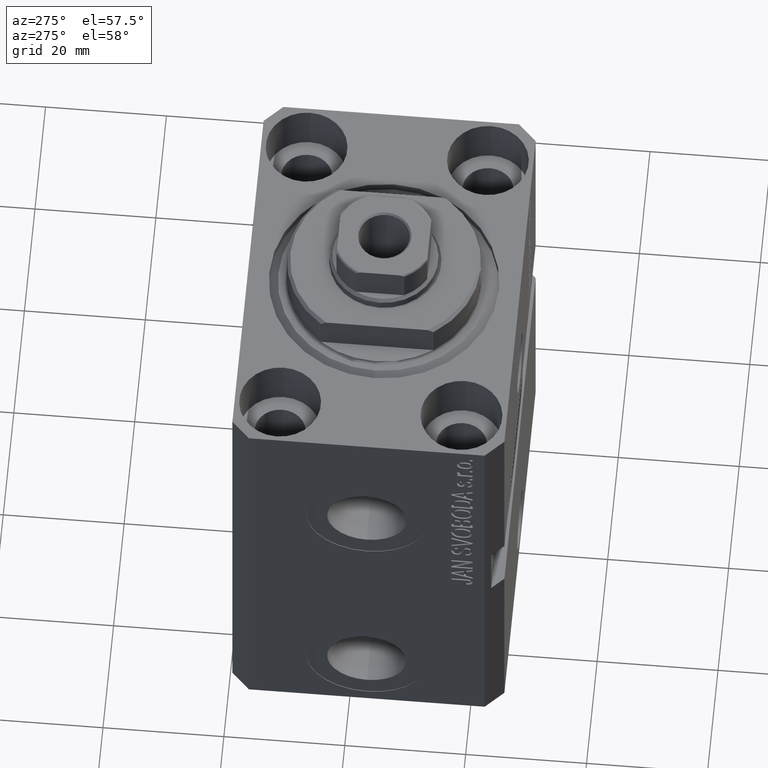
[diagram: clean part render]
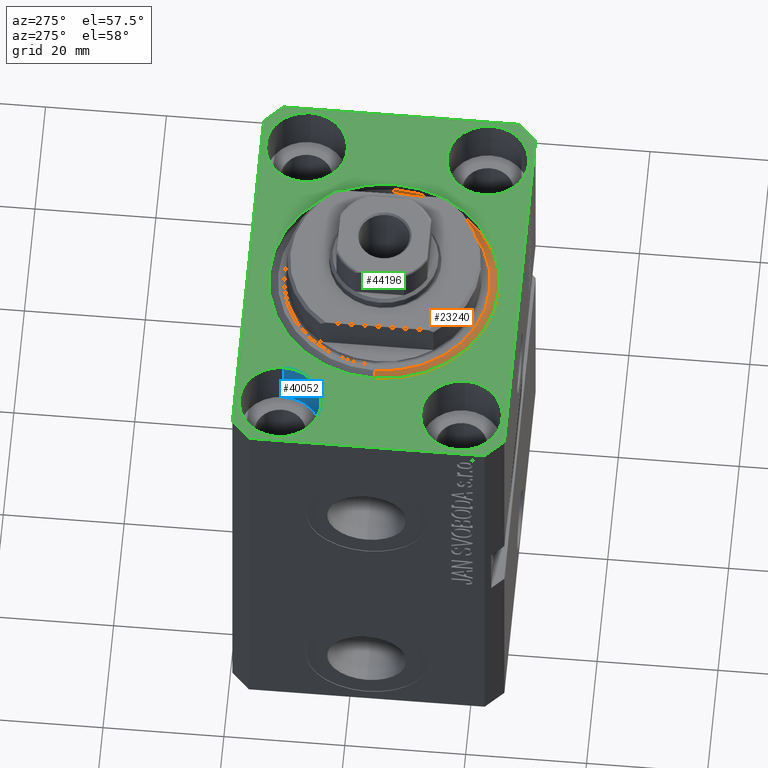
[diagram: same view with three faces highlighted in distinct colors, each labeled with its STEP entity id]
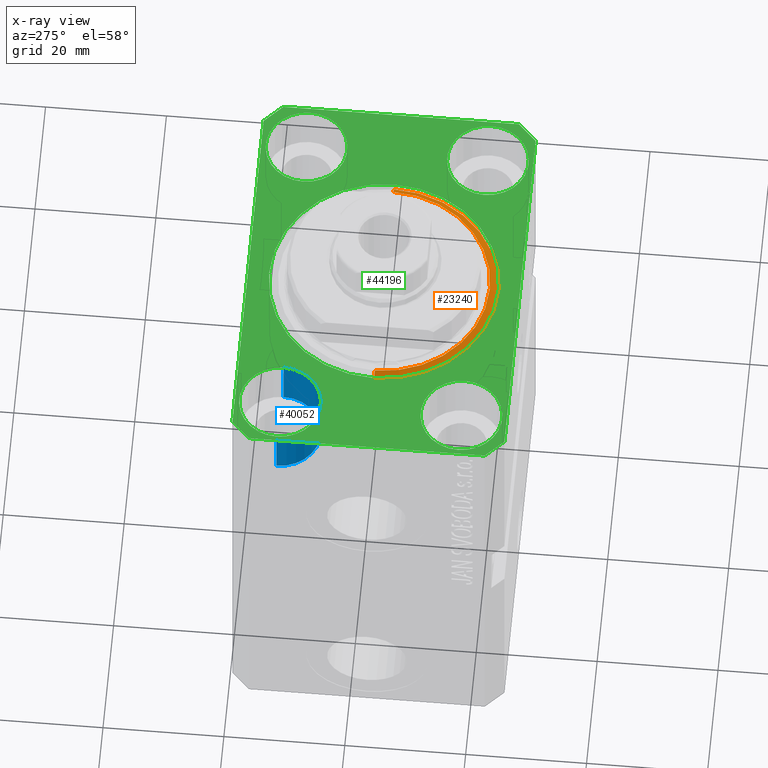
[diagram: x-ray of the same camera — body ghosted, the three highlighted faces saturated]
A machine part, auxiliary view with three faces highlighted in distinct colors.
The next image is the same camera in x-ray (body ghosted, the three faces saturated) — at least one of them is partly hidden behind the body in this view.
Their STEP definitions:

[orange] entity #23240 — the highlighted conical surface has half-angle 45 deg.
#21 = CARTESIAN_POINT ( 'NONE',  ( -19.00000000000000000, 0.000000000000000000, 1.500000000000004885 ) ) ;
#1679 = CIRCLE ( 'NONE', #26794, 17.49999999999999289 ) ;
#2065 = VECTOR ( 'NONE', #23266, 1000.000000000000000 ) ;
#3058 = VECTOR ( 'NONE', #3779, 1000.000000000000000 ) ;
#3779 = DIRECTION ( 'NONE',  ( -0.7071067811865483499, 8.659560562354943952E-17, 0.7071067811865467956 ) ) ;
#4096 = DIRECTION ( 'NONE',  ( 1.000000000000000000, 0.000000000000000000, 0.000000000000000000 ) ) ;
#6311 = DIRECTION ( 'NONE',  ( -0.000000000000000000, -0.000000000000000000, -1.000000000000000000 ) ) ;
#6423 = LINE ( 'NONE', #37653, #2065 ) ;
#7473 = CARTESIAN_POINT ( 'NONE',  ( 19.00000000000000000, 2.326828918379970970E-15, 1.500000000000004885 ) ) ;
#9440 = EDGE_CURVE ( 'NONE', #40811, #24206, #6423, .T. ) ;
#10490 = ORIENTED_EDGE ( 'NONE', *, *, #13908, .F. ) ;
#12551 = CARTESIAN_POINT ( 'NONE',  ( -17.49999999999999289, 2.234980408443919215E-15, 0.000000000000000000 ) ) ;
#13258 = DIRECTION ( 'NONE',  ( 1.000000000000000000, 0.000000000000000000, 0.000000000000000000 ) ) ;
#13527 = CARTESIAN_POINT ( 'NONE',  ( 0.000000000000000000, 0.000000000000000000, 1.500000000000004885 ) ) ;
#13908 = EDGE_CURVE ( 'NONE', #24516, #24206, #40218, .T. ) ;
#17119 = DIRECTION ( 'NONE',  ( -0.000000000000000000, -0.000000000000000000, 1.000000000000000000 ) ) ;
#17230 = AXIS2_PLACEMENT_3D ( 'NONE', #13527, #17119, #4096 ) ;
#17691 = LINE ( 'NONE', #41741, #3058 ) ;
#21918 = CARTESIAN_POINT ( 'NONE',  ( 17.49999999999999289, 0.000000000000000000, 0.000000000000000000 ) ) ;
#23240 = ADVANCED_FACE ( 'NONE', ( #42941 ), #33972, .T. ) ;
#23266 = DIRECTION ( 'NONE',  ( 0.7071067811865483499, 0.000000000000000000, 0.7071067811865467956 ) ) ;
#23376 = CARTESIAN_POINT ( 'NONE',  ( 0.000000000000000000, 0.000000000000000000, 0.000000000000000000 ) ) ;
#23389 = EDGE_CURVE ( 'NONE', #40811, #36449, #1679, .T. ) ;
#24206 = VERTEX_POINT ( 'NONE', #7473 ) ;
#24439 = ORIENTED_EDGE ( 'NONE', *, *, #9440, .T. ) ;
#24516 = VERTEX_POINT ( 'NONE', #21 ) ;
#24772 = EDGE_CURVE ( 'NONE', #36449, #24516, #17691, .T. ) ;
#26432 = ORIENTED_EDGE ( 'NONE', *, *, #23389, .F. ) ;
#26794 = AXIS2_PLACEMENT_3D ( 'NONE', #23376, #6311, #13258 ) ;
#29012 = EDGE_LOOP ( 'NONE', ( #37068, #26432, #24439, #10490 ) ) ;
#31083 = AXIS2_PLACEMENT_3D ( 'NONE', #32164, #38927, #31945 ) ;
#31945 = DIRECTION ( 'NONE',  ( 1.000000000000000000, 0.000000000000000000, 0.000000000000000000 ) ) ;
#32164 = CARTESIAN_POINT ( 'NONE',  ( 0.000000000000000000, 0.000000000000000000, 1.500000000000004885 ) ) ;
#33972 = CONICAL_SURFACE ( 'NONE', #31083, 19.00000000000000000, 0.7853981633974492782 ) ;
#36449 = VERTEX_POINT ( 'NONE', #12551 ) ;
#37068 = ORIENTED_EDGE ( 'NONE', *, *, #24772, .F. ) ;
#37653 = CARTESIAN_POINT ( 'NONE',  ( 19.00000000000000000, 0.000000000000000000, 1.500000000000004885 ) ) ;
#38927 = DIRECTION ( 'NONE',  ( -0.000000000000000000, -0.000000000000000000, 1.000000000000000000 ) ) ;
#40218 = CIRCLE ( 'NONE', #17230, 19.00000000000000000 ) ;
#40811 = VERTEX_POINT ( 'NONE', #21918 ) ;
#41741 = CARTESIAN_POINT ( 'NONE',  ( -19.00000000000000000, 2.326828918379970970E-15, 1.500000000000004885 ) ) ;
#42941 = FACE_OUTER_BOUND ( 'NONE', #29012, .T. ) ;

[blue] entity #40052 — the highlighted cylindrical surface (partial cylindrical patch) has radius 6.75 mm, axis along (0, 0, 1).
#275 = ORIENTED_EDGE ( 'NONE', *, *, #37568, .F. ) ;
#342 = CARTESIAN_POINT ( 'NONE',  ( -25.00000000000000355, 15.00000000000000000, 0.000000000000000000 ) ) ;
#1439 = CARTESIAN_POINT ( 'NONE',  ( -25.00000000000000355, 15.00000000000000000, -9.000000000000000000 ) ) ;
#2160 = ORIENTED_EDGE ( 'NONE', *, *, #19365, .T. ) ;
#2294 = AXIS2_PLACEMENT_3D ( 'NONE', #342, #20992, #37872 ) ;
#2477 = LINE ( 'NONE', #17509, #44294 ) ;
#8612 = DIRECTION ( 'NONE',  ( 0.000000000000000000, 0.000000000000000000, 1.000000000000000000 ) ) ;
#8854 = CARTESIAN_POINT ( 'NONE',  ( -31.75000000002253842, 15.00000000000000000, -9.000000000000000000 ) ) ;
#9471 = CYLINDRICAL_SURFACE ( 'NONE', #36374, 6.750000000022533087 ) ;
#9936 = ORIENTED_EDGE ( 'NONE', *, *, #12195, .T. ) ;
#11422 = CARTESIAN_POINT ( 'NONE',  ( -31.75000000002253842, 15.00000000000000000, -9.000000000000000000 ) ) ;
#11789 = VERTEX_POINT ( 'NONE', #8854 ) ;
#12195 = EDGE_CURVE ( 'NONE', #11789, #32926, #17720, .T. ) ;
#13021 = ORIENTED_EDGE ( 'NONE', *, *, #13749, .F. ) ;
#13749 = EDGE_CURVE ( 'NONE', #11789, #40957, #37300, .T. ) ;
#15130 = DIRECTION ( 'NONE',  ( 1.000000000000000000, 0.000000000000000000, 0.000000000000000000 ) ) ;
#15553 = DIRECTION ( 'NONE',  ( 1.000000000000000000, 0.000000000000000000, 0.000000000000000000 ) ) ;
#17063 = DIRECTION ( 'NONE',  ( -0.000000000000000000, -0.000000000000000000, 1.000000000000000000 ) ) ;
#17509 = CARTESIAN_POINT ( 'NONE',  ( -18.24999999997747224, 15.00000000000000000, -9.000000000000000000 ) ) ;
#17720 = LINE ( 'NONE', #11422, #43717 ) ;
#17907 = AXIS2_PLACEMENT_3D ( 'NONE', #1439, #8612, #15130 ) ;
#18384 = DIRECTION ( 'NONE',  ( -0.000000000000000000, -0.000000000000000000, 1.000000000000000000 ) ) ;
#19365 = EDGE_CURVE ( 'NONE', #32926, #21459, #41777, .T. ) ;
#20992 = DIRECTION ( 'NONE',  ( 0.000000000000000000, 0.000000000000000000, 1.000000000000000000 ) ) ;
#21459 = VERTEX_POINT ( 'NONE', #22016 ) ;
#22016 = CARTESIAN_POINT ( 'NONE',  ( -18.24999999997747224, 15.00000000000000000, 0.000000000000000000 ) ) ;
#24060 = EDGE_LOOP ( 'NONE', ( #13021, #9936, #2160, #275 ) ) ;
#26617 = CARTESIAN_POINT ( 'NONE',  ( -18.24999999997747224, 15.00000000000000000, -9.000000000000000000 ) ) ;
#32626 = CARTESIAN_POINT ( 'NONE',  ( -25.00000000000000355, 15.00000000000000000, -9.000000000000000000 ) ) ;
#32926 = VERTEX_POINT ( 'NONE', #34637 ) ;
#33058 = DIRECTION ( 'NONE',  ( -0.000000000000000000, -0.000000000000000000, 1.000000000000000000 ) ) ;
#34637 = CARTESIAN_POINT ( 'NONE',  ( -31.75000000002253842, 15.00000000000000000, 0.000000000000000000 ) ) ;
#36374 = AXIS2_PLACEMENT_3D ( 'NONE', #32626, #33058, #15553 ) ;
#37300 = CIRCLE ( 'NONE', #17907, 6.750000000022533087 ) ;
#37568 = EDGE_CURVE ( 'NONE', #40957, #21459, #2477, .T. ) ;
#37872 = DIRECTION ( 'NONE',  ( 1.000000000000000000, 0.000000000000000000, 0.000000000000000000 ) ) ;
#40052 = ADVANCED_FACE ( 'NONE', ( #40270 ), #9471, .F. ) ;
#40270 = FACE_OUTER_BOUND ( 'NONE', #24060, .T. ) ;
#40957 = VERTEX_POINT ( 'NONE', #26617 ) ;
#41777 = CIRCLE ( 'NONE', #2294, 6.750000000022533087 ) ;
#43717 = VECTOR ( 'NONE', #18384, 1000.000000000000000 ) ;
#44294 = VECTOR ( 'NONE', #17063, 1000.000000000000000 ) ;

[green] entity #44196 — the highlighted planar face has unit normal (0, 0, 1).
#147 = DIRECTION ( 'NONE',  ( 1.000000000000000000, 0.000000000000000000, 0.000000000000000000 ) ) ;
#342 = CARTESIAN_POINT ( 'NONE',  ( -25.00000000000000355, 15.00000000000000000, 0.000000000000000000 ) ) ;
#1337 = CARTESIAN_POINT ( 'NONE',  ( -31.75000000004154899, -15.00000000000000000, 0.000000000000000000 ) ) ;
#1418 = DIRECTION ( 'NONE',  ( 0.000000000000000000, 0.000000000000000000, 1.000000000000000000 ) ) ;
#1531 = CIRCLE ( 'NONE', #37391, 6.749999999977465137 ) ;
#2294 = AXIS2_PLACEMENT_3D ( 'NONE', #342, #20992, #37872 ) ;
#2371 = CARTESIAN_POINT ( 'NONE',  ( -29.49999999999650413, -22.49999999999949907, 0.000000000000000000 ) ) ;
#2902 = EDGE_LOOP ( 'NONE', ( #23497, #39630 ) ) ;
#3100 = CARTESIAN_POINT ( 'NONE',  ( 32.49999999999651124, -19.49999999999949196, 0.000000000000000000 ) ) ;
#3198 = DIRECTION ( 'NONE',  ( 0.000000000000000000, 0.000000000000000000, 1.000000000000000000 ) ) ;
#3305 = DIRECTION ( 'NONE',  ( 0.7071067811865474617, -0.7071067811865474617, 0.000000000000000000 ) ) ;
#3383 = CARTESIAN_POINT ( 'NONE',  ( 0.000000000000000000, 0.000000000000000000, 0.000000000000000000 ) ) ;
#3413 = VERTEX_POINT ( 'NONE', #22962 ) ;
#3677 = VECTOR ( 'NONE', #3305, 1000.000000000000114 ) ;
#3862 = CIRCLE ( 'NONE', #21784, 6.749999999958452790 ) ;
#4381 = DIRECTION ( 'NONE',  ( 0.000000000000000000, 0.000000000000000000, 1.000000000000000000 ) ) ;
#4494 = EDGE_LOOP ( 'NONE', ( #9959, #16825, #10404, #27449, #42349, #31340, #11920, #8192 ) ) ;
#4589 = CARTESIAN_POINT ( 'NONE',  ( 32.49999999999702993, 19.49999999999945999, 0.000000000000000000 ) ) ;
#4709 = DIRECTION ( 'NONE',  ( 1.000000000000000000, 0.000000000000000000, 0.000000000000000000 ) ) ;
#4933 = DIRECTION ( 'NONE',  ( 0.000000000000000000, 0.000000000000000000, 1.000000000000000000 ) ) ;
#5313 = ORIENTED_EDGE ( 'NONE', *, *, #23494, .F. ) ;
#5697 = EDGE_CURVE ( 'NONE', #7636, #25155, #27081, .T. ) ;
#5812 = AXIS2_PLACEMENT_3D ( 'NONE', #40061, #3198, #29711 ) ;
#6346 = CARTESIAN_POINT ( 'NONE',  ( 18.25000000002253842, -15.00000000000000000, 0.000000000000000000 ) ) ;
#6453 = LINE ( 'NONE', #34075, #3677 ) ;
#6472 = LINE ( 'NONE', #3100, #36773 ) ;
#6620 = VECTOR ( 'NONE', #29782, 1000.000000000000000 ) ;
#7027 = AXIS2_PLACEMENT_3D ( 'NONE', #39207, #4381, #21669 ) ;
#7541 = CARTESIAN_POINT ( 'NONE',  ( 18.25000000004154543, 15.00000000000000888, 0.000000000000000000 ) ) ;
#7636 = VERTEX_POINT ( 'NONE', #34225 ) ;
#7780 = CARTESIAN_POINT ( 'NONE',  ( 29.49999999999707967, 22.49999999999951328, 0.000000000000000000 ) ) ;
#8070 = CARTESIAN_POINT ( 'NONE',  ( -25.00000000000000355, -15.00000000000000000, 0.000000000000000000 ) ) ;
#8192 = ORIENTED_EDGE ( 'NONE', *, *, #13641, .T. ) ;
#8432 = DIRECTION ( 'NONE',  ( 1.000000000000000000, 0.000000000000000000, 0.000000000000000000 ) ) ;
#9444 = FACE_BOUND ( 'NONE', #28066, .T. ) ;
#9771 = VERTEX_POINT ( 'NONE', #12873 ) ;
#9959 = ORIENTED_EDGE ( 'NONE', *, *, #16691, .T. ) ;
#10404 = ORIENTED_EDGE ( 'NONE', *, *, #27504, .T. ) ;
#10546 = CARTESIAN_POINT ( 'NONE',  ( 29.49999999999707967, 22.49999999999951328, 0.000000000000000000 ) ) ;
#10595 = EDGE_LOOP ( 'NONE', ( #5313, #16800 ) ) ;
#10777 = EDGE_CURVE ( 'NONE', #21459, #32926, #34386, .T. ) ;
#10992 = DIRECTION ( 'NONE',  ( 1.000000000000000000, 0.000000000000000000, -0.000000000000000000 ) ) ;
#11920 = ORIENTED_EDGE ( 'NONE', *, *, #19820, .T. ) ;
#12377 = DIRECTION ( 'NONE',  ( 0.000000000000000000, 0.000000000000000000, 1.000000000000000000 ) ) ;
#12814 = FACE_BOUND ( 'NONE', #10595, .T. ) ;
#12873 = CARTESIAN_POINT ( 'NONE',  ( -32.49999999999650413, -19.49999999999949907, 0.000000000000000000 ) ) ;
#13205 = VERTEX_POINT ( 'NONE', #18612 ) ;
#13386 = DIRECTION ( 'NONE',  ( 0.000000000000000000, 0.000000000000000000, 1.000000000000000000 ) ) ;
#13641 = EDGE_CURVE ( 'NONE', #13205, #14318, #18058, .T. ) ;
#13832 = DIRECTION ( 'NONE',  ( 0.000000000000000000, 0.000000000000000000, 1.000000000000000000 ) ) ;
#14106 = AXIS2_PLACEMENT_3D ( 'NONE', #27438, #23403, #40712 ) ;
#14318 = VERTEX_POINT ( 'NONE', #10546 ) ;
#14422 = CARTESIAN_POINT ( 'NONE',  ( -32.49999999999650413, 19.49999999999949907, 0.000000000000000000 ) ) ;
#14508 = DIRECTION ( 'NONE',  ( -1.000000000000000000, -2.352167425053553784E-16, 0.000000000000000000 ) ) ;
#15128 = VERTEX_POINT ( 'NONE', #19023 ) ;
#15146 = VECTOR ( 'NONE', #14508, 1000.000000000000000 ) ;
#15371 = EDGE_CURVE ( 'NONE', #24616, #32285, #43082, .T. ) ;
#15715 = AXIS2_PLACEMENT_3D ( 'NONE', #29473, #12377, #25443 ) ;
#15925 = CARTESIAN_POINT ( 'NONE',  ( -32.49999999999650413, 19.49999999999949907, 0.000000000000000000 ) ) ;
#16606 = DIRECTION ( 'NONE',  ( 1.000000000000000000, 0.000000000000000000, 0.000000000000000000 ) ) ;
#16631 = EDGE_CURVE ( 'NONE', #9771, #27582, #6453, .T. ) ;
#16691 = EDGE_CURVE ( 'NONE', #14318, #33059, #38354, .T. ) ;
#16800 = ORIENTED_EDGE ( 'NONE', *, *, #40192, .F. ) ;
#16825 = ORIENTED_EDGE ( 'NONE', *, *, #20130, .T. ) ;
#16892 = EDGE_CURVE ( 'NONE', #17407, #17327, #1531, .T. ) ;
#17327 = VERTEX_POINT ( 'NONE', #39415 ) ;
#17402 = EDGE_CURVE ( 'NONE', #17327, #17407, #25197, .T. ) ;
#17407 = VERTEX_POINT ( 'NONE', #6346 ) ;
#18058 = LINE ( 'NONE', #4589, #34428 ) ;
#18287 = DIRECTION ( 'NONE',  ( -0.7071067811865352493, 0.7071067811865597852, 0.000000000000000000 ) ) ;
#18612 = CARTESIAN_POINT ( 'NONE',  ( 32.49999999999702993, 19.49999999999945999, 0.000000000000000000 ) ) ;
#19023 = CARTESIAN_POINT ( 'NONE',  ( -18.24999999995846167, -15.00000000000000000, 0.000000000000000000 ) ) ;
#19060 = CARTESIAN_POINT ( 'NONE',  ( 29.49999999999650413, -22.49999999999949196, 0.000000000000000000 ) ) ;
#19231 = EDGE_CURVE ( 'NONE', #27582, #19677, #36529, .T. ) ;
#19365 = EDGE_CURVE ( 'NONE', #32926, #21459, #41777, .T. ) ;
#19677 = VERTEX_POINT ( 'NONE', #19060 ) ;
#19721 = VERTEX_POINT ( 'NONE', #1337 ) ;
#19820 = EDGE_CURVE ( 'NONE', #3413, #13205, #6472, .T. ) ;
#19943 = CIRCLE ( 'NONE', #14106, 6.750000000041541881 ) ;
#20073 = ORIENTED_EDGE ( 'NONE', *, *, #5697, .F. ) ;
#20114 = EDGE_LOOP ( 'NONE', ( #20073, #44311 ) ) ;
#20130 = EDGE_CURVE ( 'NONE', #33059, #39448, #25048, .T. ) ;
#20992 = DIRECTION ( 'NONE',  ( 0.000000000000000000, 0.000000000000000000, 1.000000000000000000 ) ) ;
#21459 = VERTEX_POINT ( 'NONE', #22016 ) ;
#21669 = DIRECTION ( 'NONE',  ( 1.000000000000000000, 0.000000000000000000, 0.000000000000000000 ) ) ;
#21784 = AXIS2_PLACEMENT_3D ( 'NONE', #25067, #13832, #147 ) ;
#21923 = CARTESIAN_POINT ( 'NONE',  ( 25.00000000000000355, -15.00000000000000000, 0.000000000000000000 ) ) ;
#22016 = CARTESIAN_POINT ( 'NONE',  ( -18.24999999997747224, 15.00000000000000000, 0.000000000000000000 ) ) ;
#22241 = LINE ( 'NONE', #15925, #27526 ) ;
#22871 = DIRECTION ( 'NONE',  ( 1.334402673828349134E-14, 1.000000000000000000, 0.000000000000000000 ) ) ;
#22962 = CARTESIAN_POINT ( 'NONE',  ( 32.49999999999651124, -19.49999999999949196, 0.000000000000000000 ) ) ;
#23403 = DIRECTION ( 'NONE',  ( 0.000000000000000000, 0.000000000000000000, 1.000000000000000000 ) ) ;
#23494 = EDGE_CURVE ( 'NONE', #15128, #19721, #30320, .T. ) ;
#23497 = ORIENTED_EDGE ( 'NONE', *, *, #10777, .F. ) ;
#23704 = DIRECTION ( 'NONE',  ( 0.7071067811865483499, 0.7071067811865466846, 0.000000000000000000 ) ) ;
#24038 = FACE_OUTER_BOUND ( 'NONE', #4494, .T. ) ;
#24587 = VECTOR ( 'NONE', #42123, 1000.000000000000114 ) ;
#24616 = VERTEX_POINT ( 'NONE', #42673 ) ;
#24788 = CARTESIAN_POINT ( 'NONE',  ( 0.000000000000000000, 0.000000000000000000, 0.000000000000000000 ) ) ;
#25048 = LINE ( 'NONE', #42556, #24587 ) ;
#25067 = CARTESIAN_POINT ( 'NONE',  ( 24.99999999999999645, 15.00000000000000888, 0.000000000000000000 ) ) ;
#25155 = VERTEX_POINT ( 'NONE', #7541 ) ;
#25197 = CIRCLE ( 'NONE', #5812, 6.749999999977465137 ) ;
#25279 = EDGE_LOOP ( 'NONE', ( #40009, #31049 ) ) ;
#25293 = DIRECTION ( 'NONE',  ( 0.000000000000000000, 0.000000000000000000, 1.000000000000000000 ) ) ;
#25443 = DIRECTION ( 'NONE',  ( 1.000000000000000000, 0.000000000000000000, 0.000000000000000000 ) ) ;
#26816 = AXIS2_PLACEMENT_3D ( 'NONE', #3383, #30998, #10992 ) ;
#27081 = CIRCLE ( 'NONE', #28526, 6.749999999958452790 ) ;
#27127 = CARTESIAN_POINT ( 'NONE',  ( -19.00000000000000000, 2.326828918379970970E-15, 0.000000000000000000 ) ) ;
#27438 = CARTESIAN_POINT ( 'NONE',  ( -25.00000000000000355, -15.00000000000000000, 0.000000000000000000 ) ) ;
#27449 = ORIENTED_EDGE ( 'NONE', *, *, #16631, .T. ) ;
#27504 = EDGE_CURVE ( 'NONE', #39448, #9771, #22241, .T. ) ;
#27526 = VECTOR ( 'NONE', #39989, 1000.000000000000000 ) ;
#27582 = VERTEX_POINT ( 'NONE', #37508 ) ;
#28066 = EDGE_LOOP ( 'NONE', ( #32277, #31518 ) ) ;
#28071 = EDGE_CURVE ( 'NONE', #25155, #7636, #3862, .T. ) ;
#28279 = AXIS2_PLACEMENT_3D ( 'NONE', #8070, #4933, #4709 ) ;
#28526 = AXIS2_PLACEMENT_3D ( 'NONE', #30099, #1418, #16606 ) ;
#29473 = CARTESIAN_POINT ( 'NONE',  ( -25.00000000000000355, 15.00000000000000000, 0.000000000000000000 ) ) ;
#29711 = DIRECTION ( 'NONE',  ( 1.000000000000000000, 0.000000000000000000, 0.000000000000000000 ) ) ;
#29782 = DIRECTION ( 'NONE',  ( 1.000000000000000000, 1.176083712526788232E-16, 0.000000000000000000 ) ) ;
#29990 = VECTOR ( 'NONE', #23704, 1000.000000000000000 ) ;
#30099 = CARTESIAN_POINT ( 'NONE',  ( 24.99999999999999645, 15.00000000000000888, 0.000000000000000000 ) ) ;
#30118 = FACE_BOUND ( 'NONE', #2902, .T. ) ;
#30320 = CIRCLE ( 'NONE', #28279, 6.750000000041541881 ) ;
#30998 = DIRECTION ( 'NONE',  ( 0.000000000000000000, 0.000000000000000000, 1.000000000000000000 ) ) ;
#31049 = ORIENTED_EDGE ( 'NONE', *, *, #39133, .F. ) ;
#31340 = ORIENTED_EDGE ( 'NONE', *, *, #38381, .T. ) ;
#31518 = ORIENTED_EDGE ( 'NONE', *, *, #16892, .F. ) ;
#32277 = ORIENTED_EDGE ( 'NONE', *, *, #17402, .F. ) ;
#32285 = VERTEX_POINT ( 'NONE', #27127 ) ;
#32371 = CARTESIAN_POINT ( 'NONE',  ( -29.49999999999650413, 22.49999999999949907, 0.000000000000000000 ) ) ;
#32926 = VERTEX_POINT ( 'NONE', #34637 ) ;
#33059 = VERTEX_POINT ( 'NONE', #32371 ) ;
#34034 = CARTESIAN_POINT ( 'NONE',  ( 29.49999999999650413, -22.49999999999949196, 0.000000000000000000 ) ) ;
#34075 = CARTESIAN_POINT ( 'NONE',  ( -32.49999999999650413, -19.49999999999949907, 0.000000000000000000 ) ) ;
#34225 = CARTESIAN_POINT ( 'NONE',  ( 31.74999999995845101, 15.00000000000000888, 0.000000000000000000 ) ) ;
#34290 = CIRCLE ( 'NONE', #7027, 19.00000000000000000 ) ;
#34386 = CIRCLE ( 'NONE', #15715, 6.750000000022533087 ) ;
#34428 = VECTOR ( 'NONE', #18287, 1000.000000000000000 ) ;
#34637 = CARTESIAN_POINT ( 'NONE',  ( -31.75000000002253842, 15.00000000000000000, 0.000000000000000000 ) ) ;
#34823 = PLANE ( 'NONE',  #26816 ) ;
#36529 = LINE ( 'NONE', #2371, #6620 ) ;
#36649 = AXIS2_PLACEMENT_3D ( 'NONE', #24788, #13386, #42081 ) ;
#36773 = VECTOR ( 'NONE', #22871, 1000.000000000000000 ) ;
#36867 = FACE_BOUND ( 'NONE', #20114, .T. ) ;
#37391 = AXIS2_PLACEMENT_3D ( 'NONE', #21923, #25293, #8432 ) ;
#37508 = CARTESIAN_POINT ( 'NONE',  ( -29.49999999999650413, -22.49999999999949907, 0.000000000000000000 ) ) ;
#37872 = DIRECTION ( 'NONE',  ( 1.000000000000000000, 0.000000000000000000, 0.000000000000000000 ) ) ;
#38354 = LINE ( 'NONE', #7780, #15146 ) ;
#38381 = EDGE_CURVE ( 'NONE', #19677, #3413, #40789, .T. ) ;
#39133 = EDGE_CURVE ( 'NONE', #32285, #24616, #34290, .T. ) ;
#39207 = CARTESIAN_POINT ( 'NONE',  ( 0.000000000000000000, 0.000000000000000000, 0.000000000000000000 ) ) ;
#39415 = CARTESIAN_POINT ( 'NONE',  ( 31.74999999997746869, -15.00000000000000000, 0.000000000000000000 ) ) ;
#39448 = VERTEX_POINT ( 'NONE', #14422 ) ;
#39630 = ORIENTED_EDGE ( 'NONE', *, *, #19365, .F. ) ;
#39989 = DIRECTION ( 'NONE',  ( 0.000000000000000000, -1.000000000000000000, 0.000000000000000000 ) ) ;
#40009 = ORIENTED_EDGE ( 'NONE', *, *, #15371, .F. ) ;
#40061 = CARTESIAN_POINT ( 'NONE',  ( 25.00000000000000355, -15.00000000000000000, 0.000000000000000000 ) ) ;
#40192 = EDGE_CURVE ( 'NONE', #19721, #15128, #19943, .T. ) ;
#40712 = DIRECTION ( 'NONE',  ( 1.000000000000000000, 0.000000000000000000, 0.000000000000000000 ) ) ;
#40789 = LINE ( 'NONE', #34034, #29990 ) ;
#41777 = CIRCLE ( 'NONE', #2294, 6.750000000022533087 ) ;
#42081 = DIRECTION ( 'NONE',  ( 1.000000000000000000, 0.000000000000000000, 0.000000000000000000 ) ) ;
#42123 = DIRECTION ( 'NONE',  ( -0.7071067811865474617, -0.7071067811865474617, 0.000000000000000000 ) ) ;
#42349 = ORIENTED_EDGE ( 'NONE', *, *, #19231, .T. ) ;
#42556 = CARTESIAN_POINT ( 'NONE',  ( -29.49999999999650413, 22.49999999999949907, 0.000000000000000000 ) ) ;
#42673 = CARTESIAN_POINT ( 'NONE',  ( 19.00000000000000000, 0.000000000000000000, 0.000000000000000000 ) ) ;
#43082 = CIRCLE ( 'NONE', #36649, 19.00000000000000000 ) ;
#43821 = FACE_BOUND ( 'NONE', #25279, .T. ) ;
#44196 = ADVANCED_FACE ( 'NONE', ( #12814, #9444, #36867, #30118, #43821, #24038 ), #34823, .T. ) ;
#44311 = ORIENTED_EDGE ( 'NONE', *, *, #28071, .F. ) ;